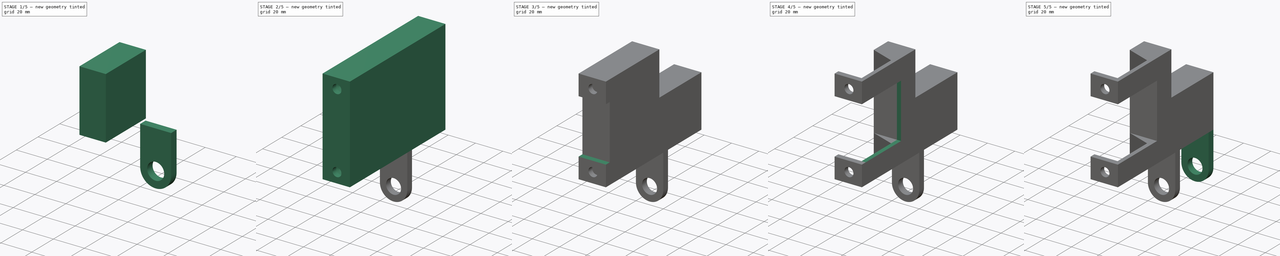
[diagram: build sequence overview — one tinted view per stage of 5, left to right]
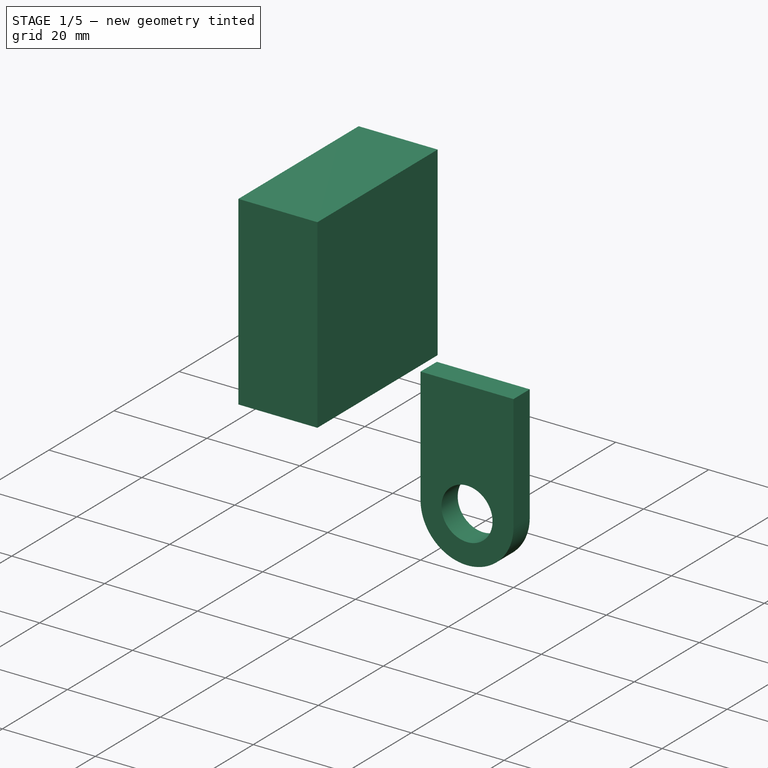
[diagram: stage 1 of 5 — iso view after this stage's code; geometry added in this stage tinted green]
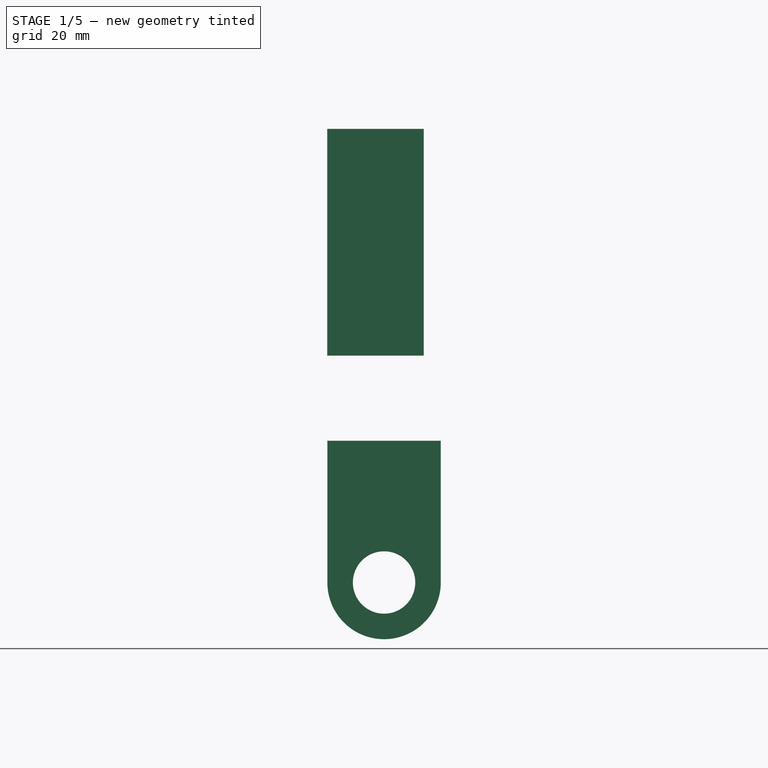
[diagram: stage 1 of 5 — front view after this stage's code; geometry added in this stage tinted green]
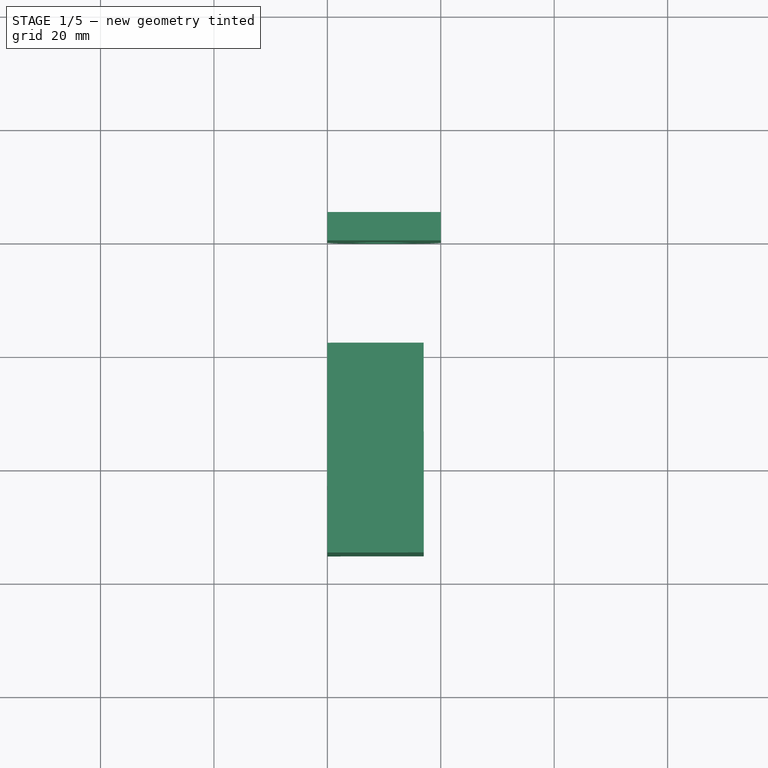
[diagram: stage 1 of 5 — top view after this stage's code; geometry added in this stage tinted green]
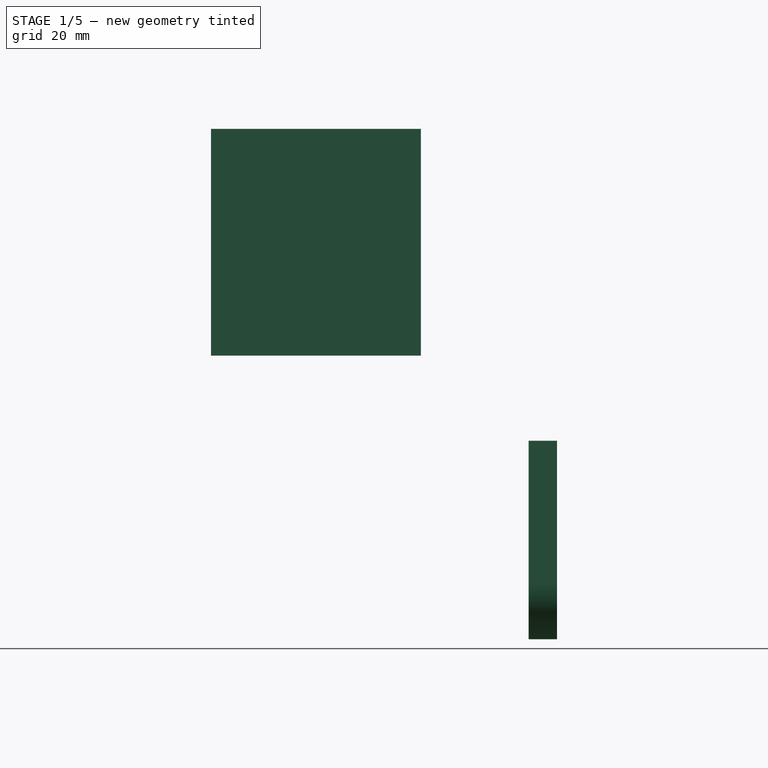
[diagram: stage 1 of 5 — right view after this stage's code; geometry added in this stage tinted green]
FCSTD DOCUMENT  (FreeCAD 0.17R13541 (Git))
Label: LimitSwitchHolder_x-minus_2
License: All rights reserved
LicenseURL: http://en.wikipedia.org/wiki/All_rights_reserved
objects: Sketcher::SketchObject×15, PartDesign::Pad×11, PartDesign::Body×11, PartDesign::ShapeBinder×10, PartDesign::Boolean×10, PartDesign::Hole×3
note: 74 computed .brp shape members not serialized (recipe doc carries the construction recipe); baked Part::Feature solids carry a one-line shape summary decoded from their .brp

FEATURE [PartDesign::ShapeBinder] CopyBoolean003
FEATURE [Sketcher::SketchObject] Sketch007
  MapMode = 5
  Placement = pos=(17.0025,0.010515,0) rot=(0.577588,-0.577231,-0.577231;2.09404rad)
  Support = -> [CopyBoolean003]
  sketch-geometry (4):
    g0: LineSegment StartX=-4 StartY=55 StartZ=0 EndX=-41 EndY=55 EndZ=0
    g1: LineSegment StartX=-41 StartY=55 StartZ=0 EndX=-41 EndY=15 EndZ=0
    g2: LineSegment StartX=-41 StartY=15 StartZ=0 EndX=-4 EndY=15 EndZ=0
    g3: LineSegment StartX=-4 StartY=15 StartZ=0 EndX=-4 EndY=55 EndZ=0
  constraints (12):
    c: Coincident(g0,g1)
    c: Coincident(g1,g2)
    c: Coincident(g2,g3)
    c: Coincident(g3,g0)
    c: Horizontal(g0)
    c: Horizontal(g2)
    c: Vertical(g1)
    c: Vertical(g3)
    c: DistanceY(g-1,g2) = 15
    c: DistanceX(g2,g-1) = 4
    c: DistanceY(g3,g3) = 40
    c: DistanceX(g2,g2) = 37
FEATURE [PartDesign::Pad] Pad005
  Length = 17
  Length2 = 100
  Profile = -> Sketch007
  Type = 0
FEATURE [PartDesign::ShapeBinder] CopyBoolean005
FEATURE [Sketcher::SketchObject] Sketch009
  MapMode = 5
  Placement = pos=(0,0,0) rot=(1,0,0;3.14159rad)
  Support = -> [CopyBoolean005]
  sketch-geometry (4):
    g0: LineSegment StartX=0 StartY=-60 StartZ=0 EndX=20 EndY=-60 EndZ=0
    g1: LineSegment StartX=20 StartY=-60 StartZ=0 EndX=20 EndY=-65 EndZ=0
    g2: LineSegment StartX=20 StartY=-65 StartZ=0 EndX=0 EndY=-65 EndZ=0
    g3: LineSegment StartX=0 StartY=-65 StartZ=0 EndX=0 EndY=-60 EndZ=0
  constraints (12):
    c: Coincident(g0,g1)
    c: Coincident(g1,g2)
    c: Coincident(g2,g3)
    c: Coincident(g3,g0)
    c: Horizontal(g0)
    c: Horizontal(g2)
    c: Vertical(g1)
    c: Vertical(g3)
    c: PointOnObject(g0,g-2)
    c: DistanceY(g0,g-1) = 60
    c: DistanceY(g1,g1) = 5
    c: DistanceX(g2,g2) = 20
FEATURE [PartDesign::Pad] Pad007
  Length = 25
  Length2 = 100
  Profile = -> Sketch009
  Type = 0
FEATURE [PartDesign::Body] Body007
  Group = -> [CopyBoolean005,Sketch009,Pad007]
  Origin = -> Origin007
  Tip = -> Pad007
FEATURE [PartDesign::ShapeBinder] CopyPad007
FEATURE [Sketcher::SketchObject] Sketch010
  MapMode = 5
  Placement = pos=(0,65,0) rot=(0,0.707107,0.707107;3.14159rad)
  Support = -> [CopyPad007]
  sketch-geometry (1):
    g0: Circle CenterX=-10.6825 CenterY=-25.077 CenterZ=0 NormalX=0 NormalY=0 NormalZ=1 AngleXU=0 Radius=11.75
FEATURE [PartDesign::Pad] Pad008
  Length = 5
  Length2 = 100
  Profile = -> Sketch010
  Reversed = true
  Type = 0
FEATURE [PartDesign::Boolean] Boolean006
  BaseFeature = -> Pad008
  Group = -> [Body007]
  Type = 0
FEATURE [Sketcher::SketchObject] Sketch011
  MapMode = 5
  Placement = pos=(0,60,0) rot=(1,0,0;1.5708rad)
  Support = -> [Boolean006]
  sketch-geometry (1):
    g0: Circle CenterX=10 CenterY=-25 CenterZ=0 NormalX=0 NormalY=0 NormalZ=1 AngleXU=0 Radius=4.92111
  constraints (2):
    c: DistanceY(g0,g-1) = 25
    c: DistanceX(g-1,g0) = 10
FEATURE [PartDesign::Hole] Hole001
  BaseFeature = -> Boolean006
  Depth = 25
  DepthType = 1
  Diameter = 11
  DrillPoint = 1
  DrillPointAngle = 118
  HoleCutCountersinkAngle = 90
  HoleCutDepth = 0
  HoleCutDiameter = 10
  HoleCutType = 0
  ModelActualThread = false
  Profile = -> Sketch011
  Tapered = false
  TaperedAngle = 90
  ThreadAngle = 0
  ThreadClass = 0
  ThreadCutOffInner = 0
  ThreadCutOffOuter = 0
  ThreadDirection = 0
  ThreadFit = 0
  ThreadPitch = 0
  ThreadSize = 9
  ThreadType = 1
  Threaded = false
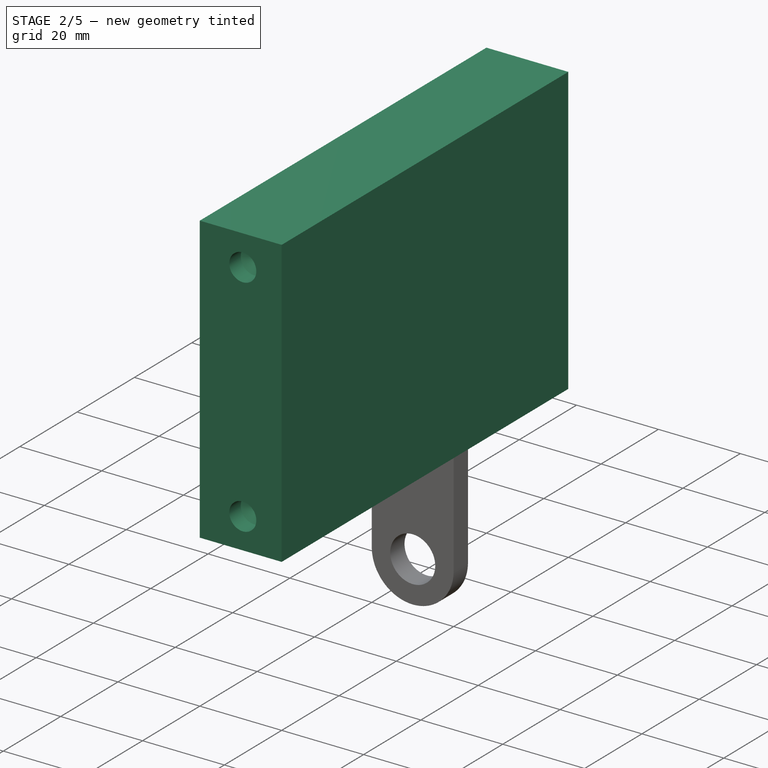
[diagram: stage 2 of 5 — iso view after this stage's code; geometry added in this stage tinted green]
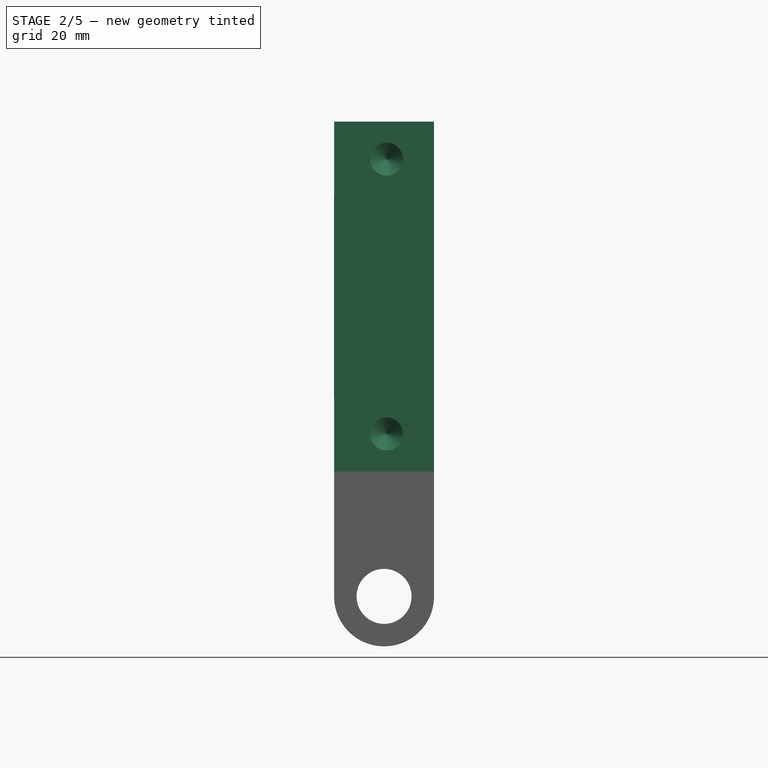
[diagram: stage 2 of 5 — front view after this stage's code; geometry added in this stage tinted green]
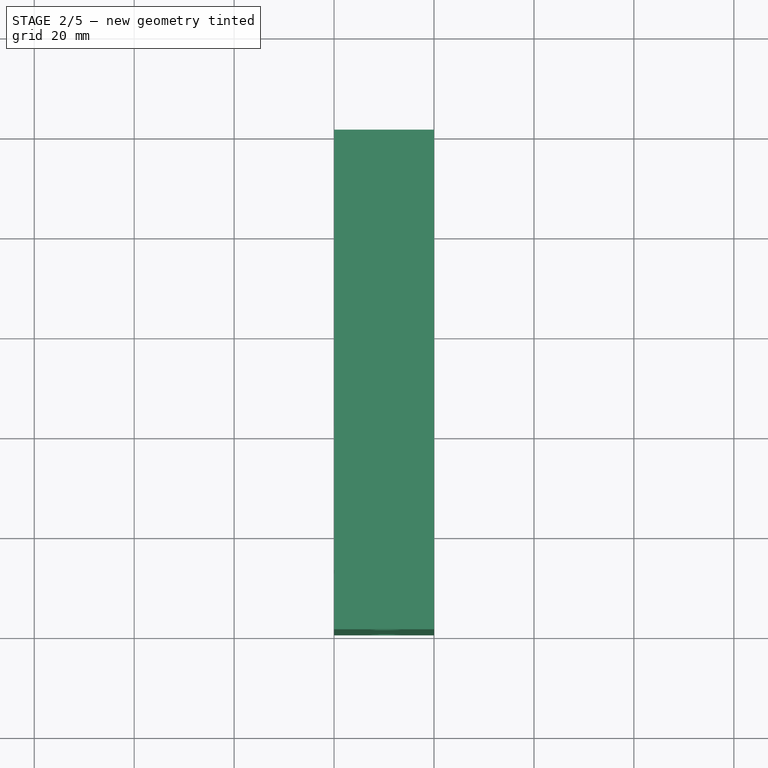
[diagram: stage 2 of 5 — top view after this stage's code; geometry added in this stage tinted green]
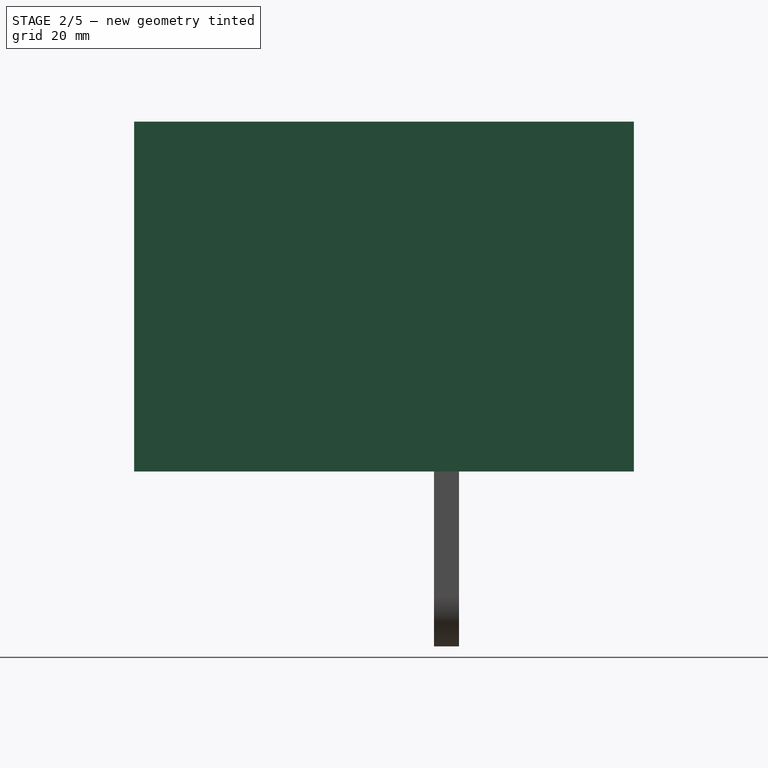
[diagram: stage 2 of 5 — right view after this stage's code; geometry added in this stage tinted green]
FEATURE [Sketcher::SketchObject] Sketch
  MapMode = 5
  Placement = pos=(0,0,0) rot=(0.57735,0.57735,0.57735;2.0944rad)
  Support = -> [YZ_Plane]
  sketch-geometry (4):
    g0: LineSegment StartX=0 StartY=70 StartZ=0 EndX=100 EndY=70 EndZ=0
    g1: LineSegment StartX=100 StartY=70 StartZ=0 EndX=100 EndY=0 EndZ=0
    g2: LineSegment StartX=100 StartY=0 StartZ=0 EndX=0 EndY=0 EndZ=0
    g3: LineSegment StartX=0 StartY=0 StartZ=0 EndX=0 EndY=70 EndZ=0
  constraints (12):
    c: Coincident(g0,g1)
    c: Coincident(g1,g2)
    c: Coincident(g2,g3)
    c: Coincident(g3,g0)
    c: Horizontal(g0)
    c: Horizontal(g2)
    c: Vertical(g1)
    c: Vertical(g3)
    c: PointOnObject(g1,g-1)
    c: PointOnObject(g2,g-2)
    c: DistanceY(g3,g3) = 70
    c: DistanceX(g0,g0) = 100
FEATURE [PartDesign::Pad] Pad
  Length = 20
  Length2 = 100
  Placement = pos=(0,0,0) rot=(0.57735,0.57735,0.57735;2.0944rad)
  Profile = -> Sketch
  Type = 0
FEATURE [Sketcher::SketchObject] Sketch001
  MapMode = 5
  Placement = pos=(0,0,0) rot=(-0.57735,-0.57735,0.57735;4.18879rad)
  Support = -> [Pad]
  sketch-geometry (2):
    g0: Circle CenterX=-62.5 CenterY=10.5 CenterZ=0 NormalX=0 NormalY=0 NormalZ=1 AngleXU=0 Radius=3.20648
    g1: Circle CenterX=-7.5 CenterY=10.5 CenterZ=0 NormalX=0 NormalY=0 NormalZ=1 AngleXU=0 Radius=3.49158
  constraints (4):
    c: DistanceY(g-1,g1) = 10.5
    c: DistanceX(g1,g-1) = 7.5
    c: DistanceX(g0,g1) = 55
    c: Horizontal(g0,g1)
FEATURE [PartDesign::Hole] Hole
  BaseFeature = -> Pad
  Depth = 6
  DepthType = 0
  Diameter = 6.6
  DrillPoint = 1
  DrillPointAngle = 118
  HoleCutCountersinkAngle = 90
  HoleCutDepth = 0
  HoleCutDiameter = 6
  HoleCutType = 0
  ModelActualThread = false
  Placement = pos=(0,0,0) rot=(0.57735,0.57735,0.57735;2.0944rad)
  Profile = -> Sketch001
  Tapered = false
  TaperedAngle = 90
  ThreadAngle = 0
  ThreadClass = 0
  ThreadCutOffInner = 0
  ThreadCutOffOuter = 0
  ThreadDirection = 0
  ThreadFit = 0
  ThreadPitch = 0
  ThreadSize = 7
  ThreadType = 1
  Threaded = false
FEATURE [PartDesign::Body] Body001
  Group = -> [CopyHole,Sketch003,Pad001]
  Origin = -> Origin001
  Tip = -> Pad001
FEATURE [PartDesign::ShapeBinder] CopyHole001
FEATURE [Sketcher::SketchObject] Sketch004
  MapMode = 5
  Placement = pos=(0,0,0) rot=(-0.57735,0.57735,0.57735;4.18879rad)
  Support = -> [CopyHole001]
  sketch-geometry (4):
    g0: LineSegment StartX=-87 StartY=32 StartZ=0 EndX=-44 EndY=32 EndZ=0
    g1: LineSegment StartX=-44 StartY=32 StartZ=0 EndX=-44 EndY=3 EndZ=0
    g2: LineSegment StartX=-44 StartY=3 StartZ=0 EndX=-87 EndY=3 EndZ=0
    g3: LineSegment StartX=-87 StartY=3 StartZ=0 EndX=-87 EndY=32 EndZ=0
  constraints (12):
    c: Coincident(g0,g1)
    c: Coincident(g1,g2)
    c: Coincident(g2,g3)
    c: Coincident(g3,g0)
    c: Horizontal(g0)
    c: Horizontal(g2)
    c: Vertical(g1)
    c: Vertical(g3)
    c: DistanceY(g-1,g1) = 3
    c: DistanceX(g1,g-1) = 44
    c: DistanceY(g1,g1) = 29
    c: DistanceX(g0,g0) = 43
FEATURE [PartDesign::Pad] Pad002
  Length = 2
  Length2 = 100
  Profile = -> Sketch004
  Reversed = true
  Type = 0
FEATURE [PartDesign::Body] Body002
  Group = -> [CopyHole001,Sketch004,Pad002]
  Origin = -> Origin002
  Tip = -> Pad002
FEATURE [PartDesign::ShapeBinder] CopyHole002
FEATURE [Sketcher::SketchObject] Sketch005
  MapMode = 5
  Placement = pos=(0,0,0) rot=(-0.57735,0.57735,0.57735;4.18879rad)
  Support = -> [CopyHole002]
  sketch-geometry (4):
    g0: LineSegment StartX=-100 StartY=70 StartZ=0 EndX=-56 EndY=70 EndZ=0
    g1: LineSegment StartX=-56 StartY=70 StartZ=0 EndX=-56 EndY=38 EndZ=0
    g2: LineSegment StartX=-56 StartY=38 StartZ=0 EndX=-100 EndY=38 EndZ=0
    g3: LineSegment StartX=-100 StartY=38 StartZ=0 EndX=-100 EndY=70 EndZ=0
  constraints (12):
    c: Coincident(g0,g1)
    c: Coincident(g1,g2)
    c: Coincident(g2,g3)
    c: Coincident(g3,g0)
    c: Horizontal(g0)
    c: Horizontal(g2)
    c: Vertical(g1)
    c: Vertical(g3)
    c: DistanceY(g-1,g1) = 38
    c: DistanceX(g1,g-1) = 56
    c: DistanceY(g1,g1) = 32
    c: DistanceX(g0,g0) = 44
FEATURE [PartDesign::Pad] Pad003
  Length = 20
  Length2 = 100
  Profile = -> Sketch005
  Reversed = true
  Type = 0
FEATURE [PartDesign::Body] Body004
  Group = -> [CopyHole003,Sketch006,Pad004]
  Origin = -> Origin004
  Tip = -> Pad004
FEATURE [PartDesign::Boolean] Boolean
  BaseFeature = -> Hole
  Group = -> [Body002]
  Type = 1
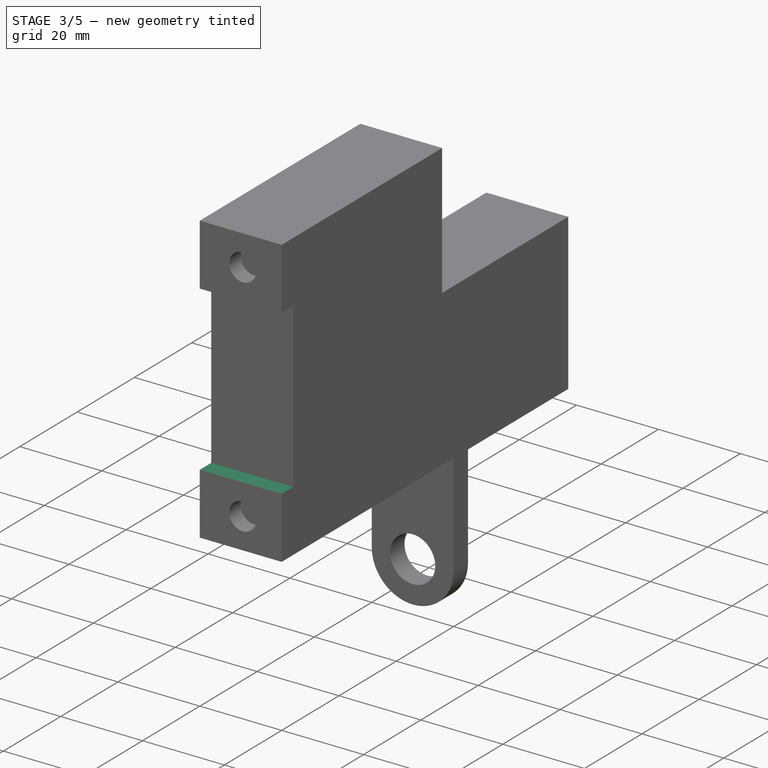
[diagram: stage 3 of 5 — iso view after this stage's code; geometry added in this stage tinted green]
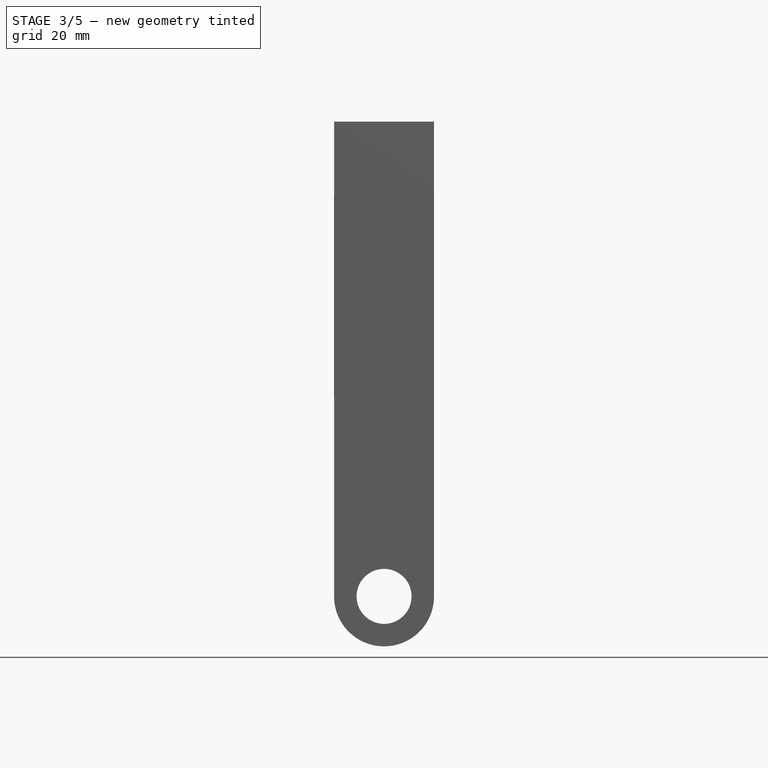
[diagram: stage 3 of 5 — front view after this stage's code; geometry added in this stage tinted green]
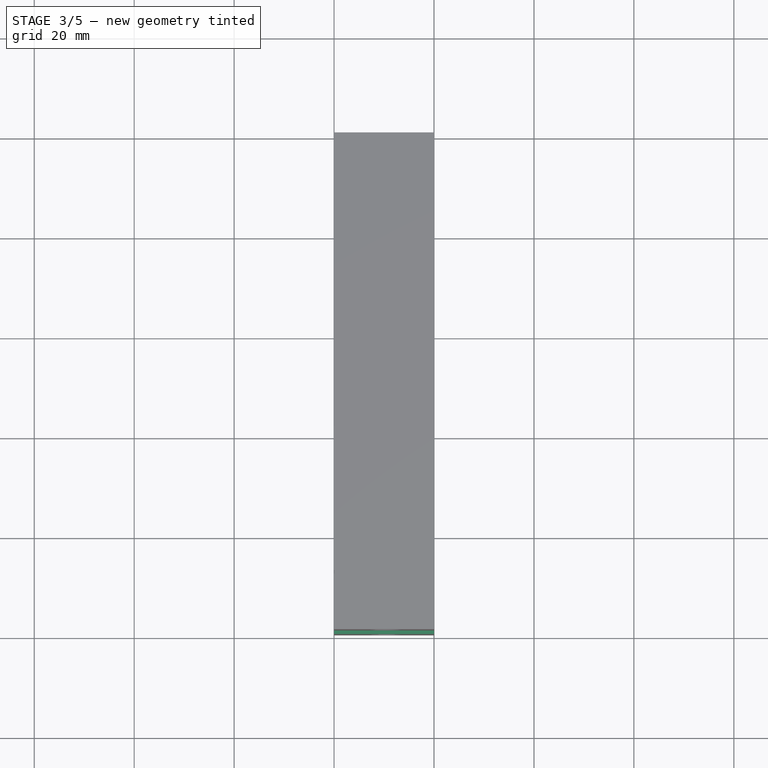
[diagram: stage 3 of 5 — top view after this stage's code; geometry added in this stage tinted green]
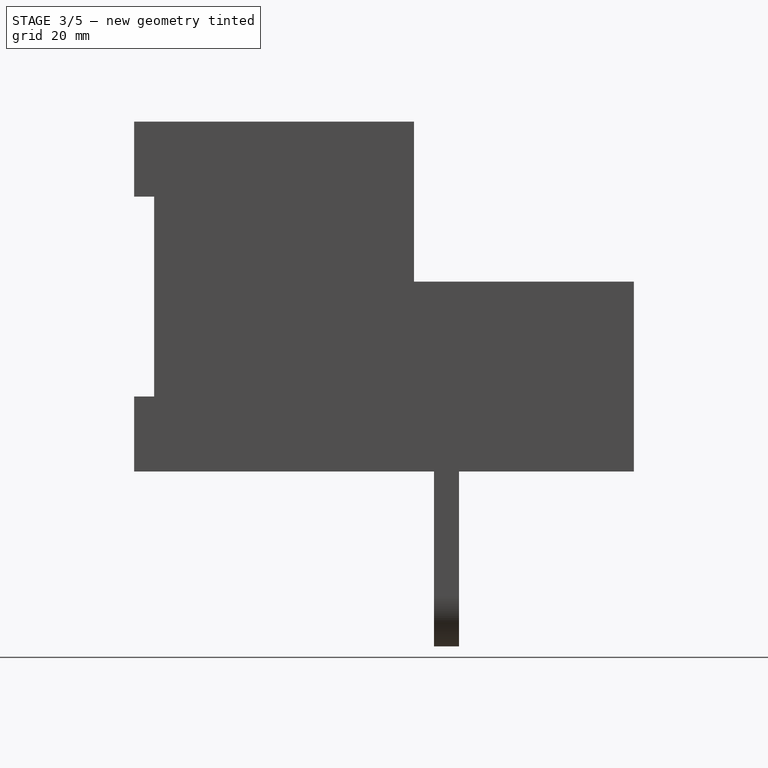
[diagram: stage 3 of 5 — right view after this stage's code; geometry added in this stage tinted green]
FEATURE [Sketcher::SketchObject] Sketch002
  MapMode = 5
  Placement = pos=(0,0,0) rot=(0.57735,0.57735,-0.57735;4.18879rad)
  Support = -> [Hole]
FEATURE [PartDesign::ShapeBinder] CopyHole
  Placement = pos=(0,0,0) rot=(0.57735,0.57735,0.57735;2.0944rad)
FEATURE [Sketcher::SketchObject] Sketch003
  MapMode = 5
  Placement = pos=(0,0,70) rot=(0,0,-1;1.5708rad)
  Support = -> [CopyHole]
  sketch-geometry (4):
    g0: LineSegment StartX=-34.8809 StartY=16.9809 StartZ=0 EndX=-4 EndY=17 EndZ=0
    g1: LineSegment StartX=-4 StartY=17 StartZ=0 EndX=-4 EndY=0 EndZ=0
    g2: LineSegment StartX=-4 StartY=0 StartZ=0 EndX=-41 EndY=0 EndZ=0
    g3: LineSegment StartX=-41 StartY=0 StartZ=0 EndX=-34.8809 EndY=16.9809 EndZ=0
  constraints (10):
    c: Coincident(g0,g1)
    c: Coincident(g1,g2)
    c: Coincident(g2,g3)
    c: Coincident(g3,g0)
    c: Horizontal(g2)
    c: Vertical(g1)
    c: DistanceY(g-1,g1) = 0
    c: DistanceX(g1,g-1) = 4
    c: DistanceY(g1,g1) = 17
    c: DistanceX(g2,g2) = 37
FEATURE [PartDesign::Pad] Pad001
  Length = 70
  Length2 = 100
  Placement = pos=(0,0,0) rot=(0.57735,0.57735,0.57735;2.0944rad)
  Profile = -> Sketch003
  Reversed = true
  Type = 0
FEATURE [PartDesign::Body] Body003
  Group = -> [CopyHole002,Sketch005,Pad003]
  Origin = -> Origin003
  Tip = -> Pad003
FEATURE [PartDesign::ShapeBinder] CopyHole003
FEATURE [Sketcher::SketchObject] Sketch006
  MapMode = 5
  Placement = pos=(0,0,0) rot=(-0.57735,0.57735,0.57735;4.18879rad)
  Support = -> [CopyHole003]
  sketch-geometry (4):
    g0: LineSegment StartX=-4 StartY=55 StartZ=0 EndX=0 EndY=55 EndZ=0
    g1: LineSegment StartX=0 StartY=55 StartZ=0 EndX=0 EndY=15 EndZ=0
    g2: LineSegment StartX=0 StartY=15 StartZ=0 EndX=-4 EndY=15 EndZ=0
    g3: LineSegment StartX=-4 StartY=15 StartZ=0 EndX=-4 EndY=55 EndZ=0
  constraints (12):
    c: Coincident(g0,g1)
    c: Coincident(g1,g2)
    c: Coincident(g2,g3)
    c: Coincident(g3,g0)
    c: Horizontal(g0)
    c: Horizontal(g2)
    c: Vertical(g1)
    c: Vertical(g3)
    c: PointOnObject(g1,g-2)
    c: DistanceY(g-1,g1) = 15
    c: DistanceX(g2,g2) = 4
    c: DistanceY(g3,g3) = 40
FEATURE [PartDesign::Pad] Pad004
  Length = 20
  Length2 = 100
  Profile = -> Sketch006
  Reversed = true
  Type = 0
FEATURE [PartDesign::Boolean] Boolean001
  BaseFeature = -> Boolean
  Group = -> [Body003]
  Type = 1
FEATURE [PartDesign::Boolean] Boolean002
  BaseFeature = -> Boolean001
  Group = -> [Body004]
  Type = 1
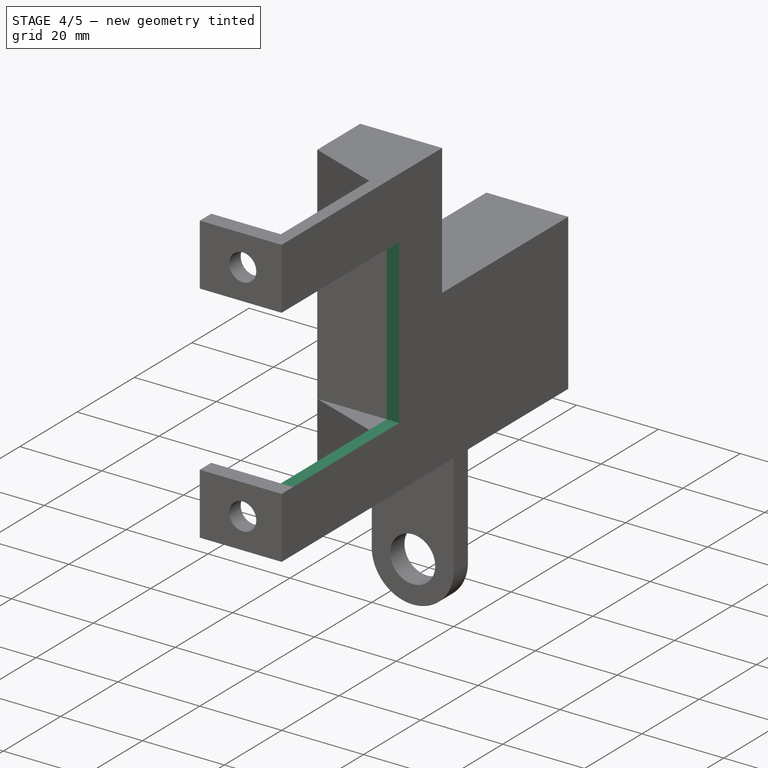
[diagram: stage 4 of 5 — iso view after this stage's code; geometry added in this stage tinted green]
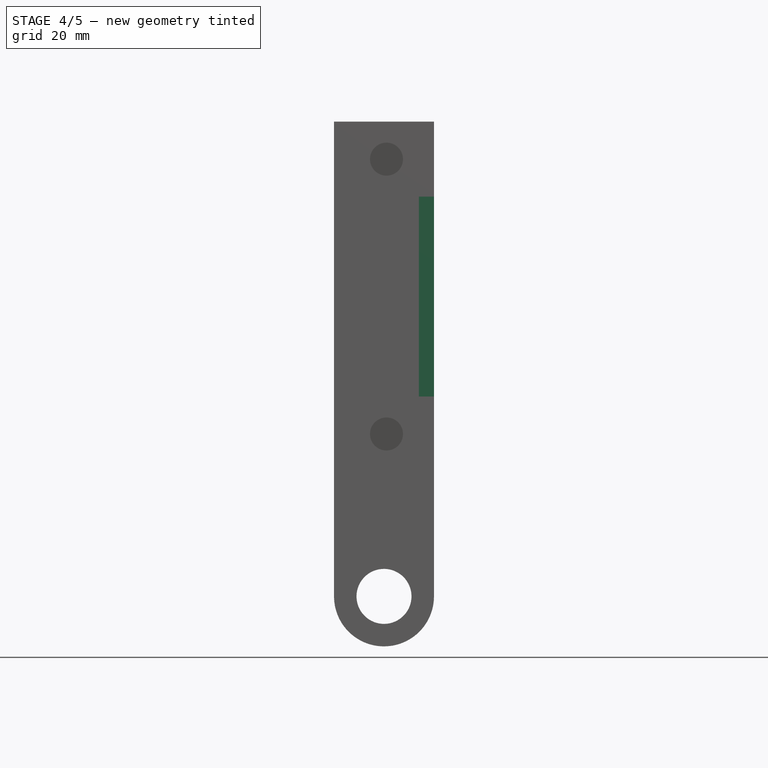
[diagram: stage 4 of 5 — front view after this stage's code; geometry added in this stage tinted green]
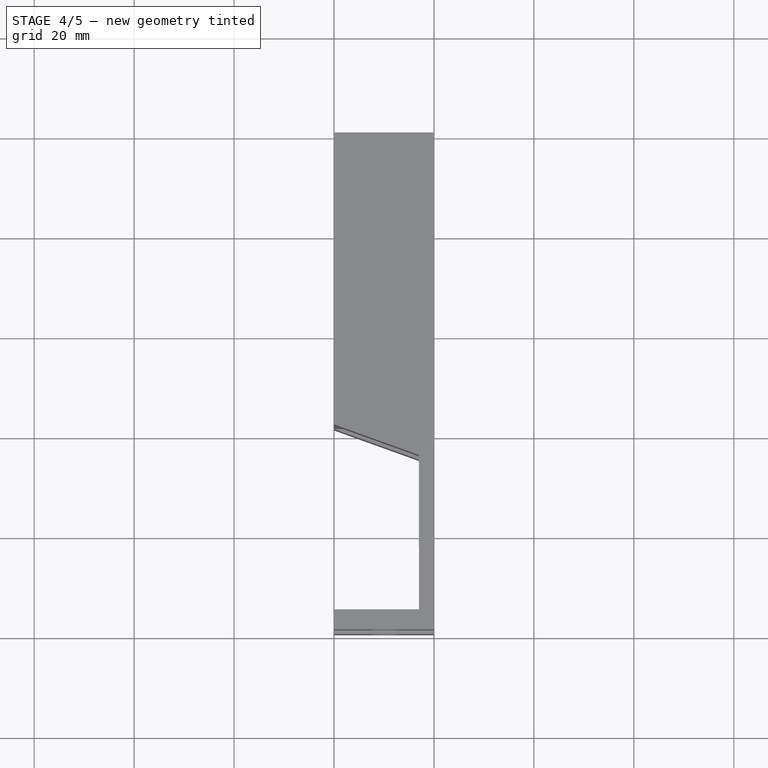
[diagram: stage 4 of 5 — top view after this stage's code; geometry added in this stage tinted green]
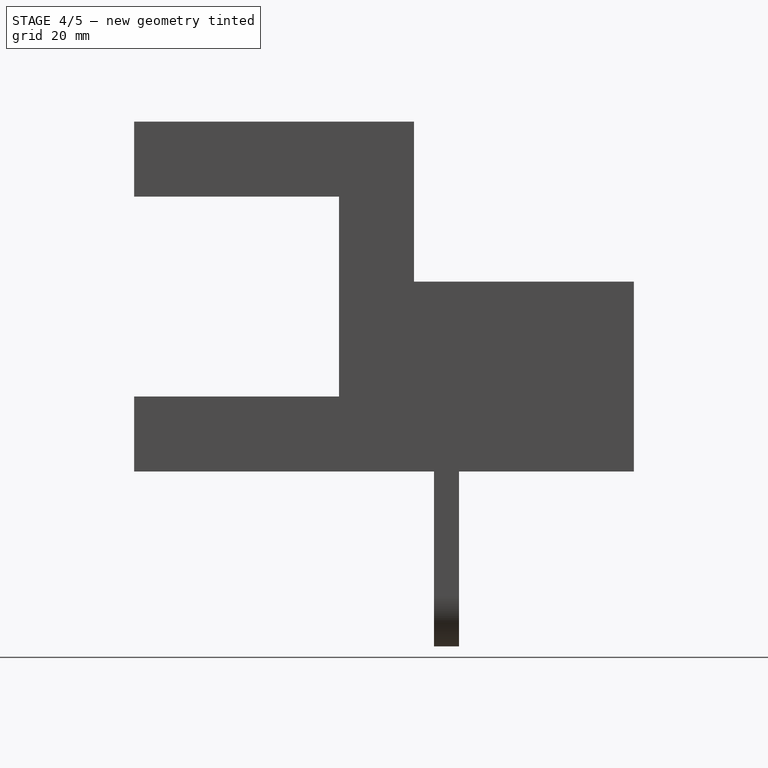
[diagram: stage 4 of 5 — right view after this stage's code; geometry added in this stage tinted green]
FEATURE [PartDesign::Boolean] Boolean003
  BaseFeature = -> Boolean002
  Group = -> [Body001]
  Type = 1
FEATURE [PartDesign::Body] Body005
  Group = -> [CopyBoolean003,Sketch007,Pad005]
  Origin = -> Origin005
  Tip = -> Pad005
FEATURE [PartDesign::ShapeBinder] CopyBoolean004
FEATURE [Sketcher::SketchObject] Sketch008
  MapMode = 5
  Placement = pos=(17.0025,0.010515,0) rot=(0.577588,-0.577231,-0.577231;2.09404rad)
  Support = -> [CopyBoolean004]
  sketch-geometry (4):
    g0: LineSegment StartX=-3 StartY=55 StartZ=0 EndX=-41 EndY=55 EndZ=0
    g1: LineSegment StartX=-41 StartY=55 StartZ=0 EndX=-41 EndY=15 EndZ=0
    g2: LineSegment StartX=-41 StartY=15 StartZ=0 EndX=-3 EndY=15 EndZ=0
    g3: LineSegment StartX=-3 StartY=15 StartZ=0 EndX=-3 EndY=55 EndZ=0
  constraints (12):
    c: Coincident(g0,g1)
    c: Coincident(g1,g2)
    c: Coincident(g2,g3)
    c: Coincident(g3,g0)
    c: Horizontal(g0)
    c: Horizontal(g2)
    c: Vertical(g1)
    c: Vertical(g3)
    c: DistanceY(g-1,g2) = 15
    c: DistanceX(g2,g-1) = 3
    c: DistanceY(g3,g3) = 40
    c: DistanceX(g2,g2) = 38
FEATURE [PartDesign::Pad] Pad006
  Length = 17
  Length2 = 100
  Profile = -> Sketch008
  Type = 0
FEATURE [PartDesign::Body] Body006
  Group = -> [CopyBoolean004,Sketch008,Pad006]
  Origin = -> Origin006
  Placement = pos=(4,0,0) rot=(0,0,1;0rad)
  Tip = -> Pad006
FEATURE [PartDesign::Boolean] Boolean004
  BaseFeature = -> Boolean003
  Group = -> [Body005]
  Type = 1
FEATURE [PartDesign::Boolean] Boolean005
  BaseFeature = -> Boolean004
  Group = -> [Body006]
  Type = 1
FEATURE [PartDesign::Body] Body010
  Group = -> [CopyPad008,Sketch013,Pad010,Boolean007,Sketch014,Hole002]
  Origin = -> Origin010
  Placement = pos=(0,35,0) rot=(0,0,1;0rad)
  Tip = -> Hole002
FEATURE [PartDesign::Boolean] Boolean008
  BaseFeature = -> Boolean005
  Group = -> [Body008]
  Type = 0
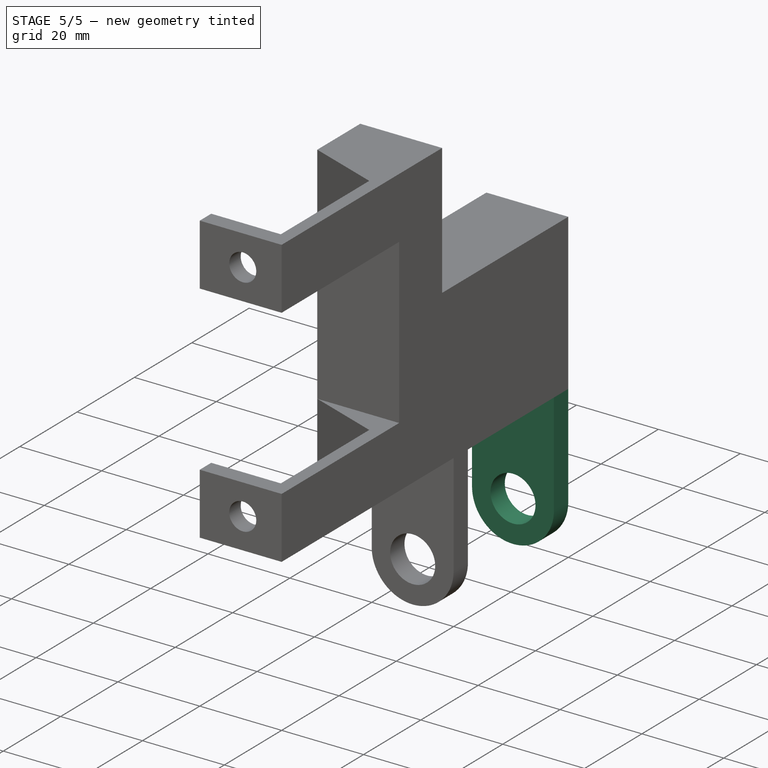
[diagram: stage 5 of 5 — iso view after this stage's code; geometry added in this stage tinted green]
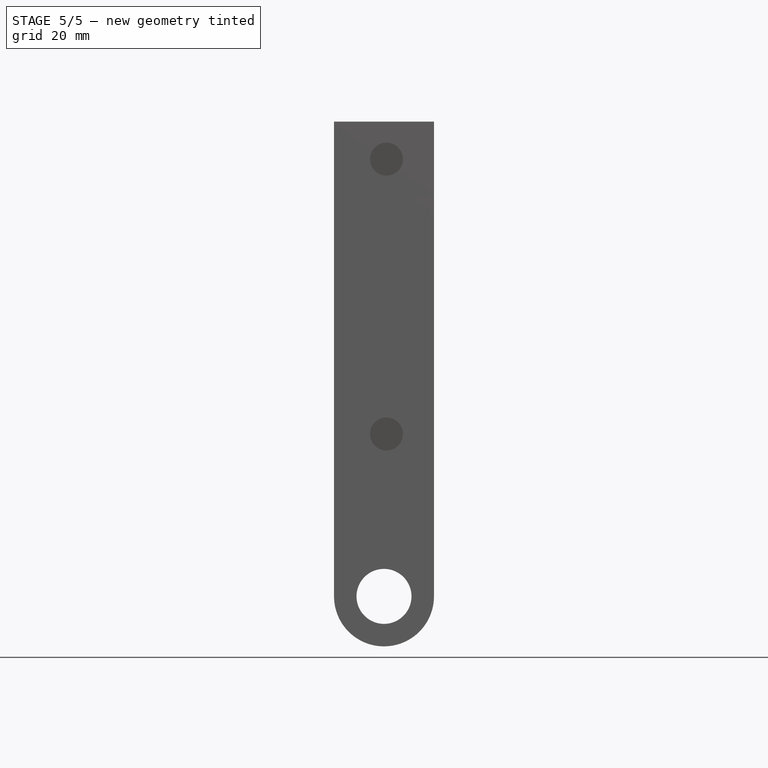
[diagram: stage 5 of 5 — front view after this stage's code; geometry added in this stage tinted green]
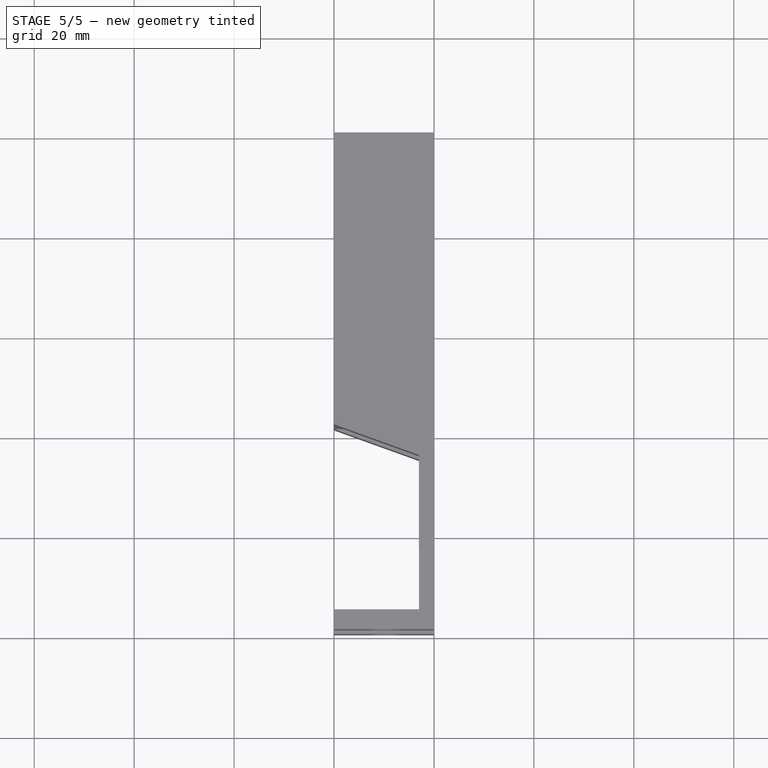
[diagram: stage 5 of 5 — top view after this stage's code; geometry added in this stage tinted green]
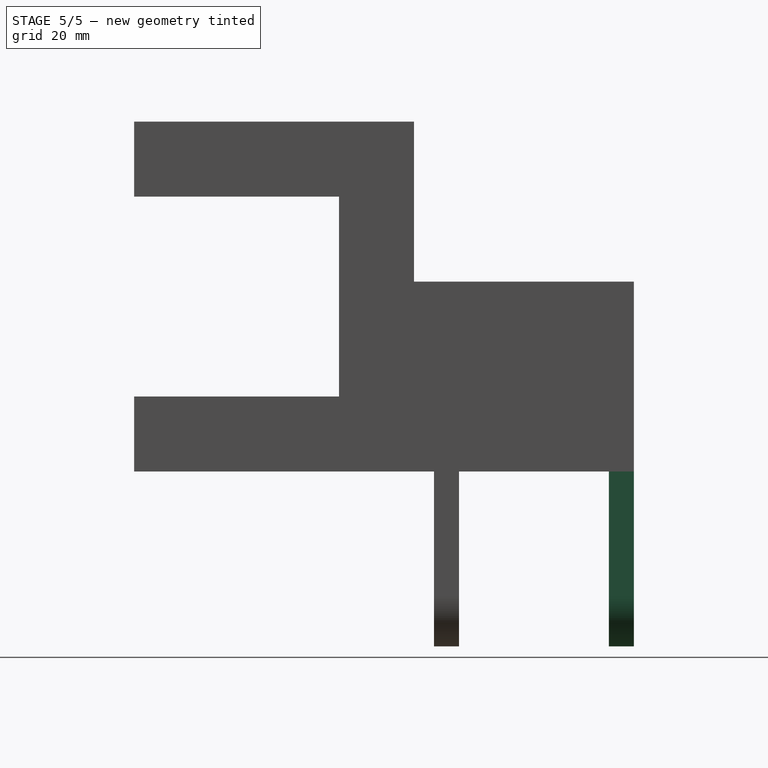
[diagram: stage 5 of 5 — right view after this stage's code; geometry added in this stage tinted green]
FEATURE [PartDesign::Body] Body008
  Group = -> [CopyPad007,Sketch010,Pad008,Boolean006,Sketch011,Hole001]
  Origin = -> Origin008
  Tip = -> Hole001
FEATURE [PartDesign::ShapeBinder] CopyBoolean006
FEATURE [Sketcher::SketchObject] Sketch012
  MapMode = 5
  Placement = pos=(0,0,0) rot=(1,0,0;3.14159rad)
  Support = -> [CopyBoolean006]
  sketch-geometry (4):
    g0: LineSegment StartX=0 StartY=-60 StartZ=0 EndX=20 EndY=-60 EndZ=0
    g1: LineSegment StartX=20 StartY=-60 StartZ=0 EndX=20 EndY=-65 EndZ=0
    g2: LineSegment StartX=20 StartY=-65 StartZ=0 EndX=0 EndY=-65 EndZ=0
    g3: LineSegment StartX=0 StartY=-65 StartZ=0 EndX=0 EndY=-60 EndZ=0
  constraints (12):
    c: Coincident(g0,g1)
    c: Coincident(g1,g2)
    c: Coincident(g2,g3)
    c: Coincident(g3,g0)
    c: Horizontal(g0)
    c: Horizontal(g2)
    c: Vertical(g1)
    c: Vertical(g3)
    c: PointOnObject(g0,g-2)
    c: DistanceY(g0,g-1) = 60
    c: DistanceY(g1,g1) = 5
    c: DistanceX(g2,g2) = 20
FEATURE [PartDesign::Pad] Pad009
  Length = 25
  Length2 = 100
  Profile = -> Sketch012
  Type = 0
FEATURE [PartDesign::Body] Body009
  Group = -> [CopyBoolean006,Sketch012,Pad009]
  Origin = -> Origin009
  Tip = -> Pad009
FEATURE [PartDesign::ShapeBinder] CopyPad008
FEATURE [Sketcher::SketchObject] Sketch013
  MapMode = 5
  Placement = pos=(0,65,0) rot=(0,0.707107,0.707107;3.14159rad)
  Support = -> [CopyPad008]
  sketch-geometry (1):
    g0: Circle CenterX=-10.6825 CenterY=-25.077 CenterZ=0 NormalX=0 NormalY=0 NormalZ=1 AngleXU=0 Radius=11.75
FEATURE [PartDesign::Pad] Pad010
  Length = 5
  Length2 = 100
  Profile = -> Sketch013
  Reversed = true
  Type = 0
FEATURE [PartDesign::Boolean] Boolean007
  BaseFeature = -> Pad010
  Group = -> [Body009]
  Type = 0
FEATURE [Sketcher::SketchObject] Sketch014
  MapMode = 5
  Placement = pos=(0,60,0) rot=(1,0,0;1.5708rad)
  Support = -> [Boolean007]
  sketch-geometry (1):
    g0: Circle CenterX=10 CenterY=-25 CenterZ=0 NormalX=0 NormalY=0 NormalZ=1 AngleXU=0 Radius=4.92111
  constraints (2):
    c: DistanceY(g0,g-1) = 25
    c: DistanceX(g-1,g0) = 10
FEATURE [PartDesign::Hole] Hole002
  BaseFeature = -> Boolean007
  Depth = 25
  DepthType = 1
  Diameter = 11
  DrillPoint = 1
  DrillPointAngle = 118
  HoleCutCountersinkAngle = 90
  HoleCutDepth = 0
  HoleCutDiameter = 10
  HoleCutType = 0
  ModelActualThread = false
  Profile = -> Sketch014
  Tapered = false
  TaperedAngle = 90
  ThreadAngle = 0
  ThreadClass = 0
  ThreadCutOffInner = 0
  ThreadCutOffOuter = 0
  ThreadDirection = 0
  ThreadFit = 0
  ThreadPitch = 0
  ThreadSize = 9
  ThreadType = 1
  Threaded = false
FEATURE [PartDesign::Boolean] Boolean009
  BaseFeature = -> Boolean008
  Group = -> [Body010]
  Type = 0
FEATURE [PartDesign::Body] Body
  Group = -> [Sketch,Pad,Sketch001,Hole,Sketch002,Boolean,Boolean001,Boolean002,Boolean003,Boolean004,Boolean005,Boolean008,Boolean009]
  Origin = -> Origin
  Tip = -> Boolean009
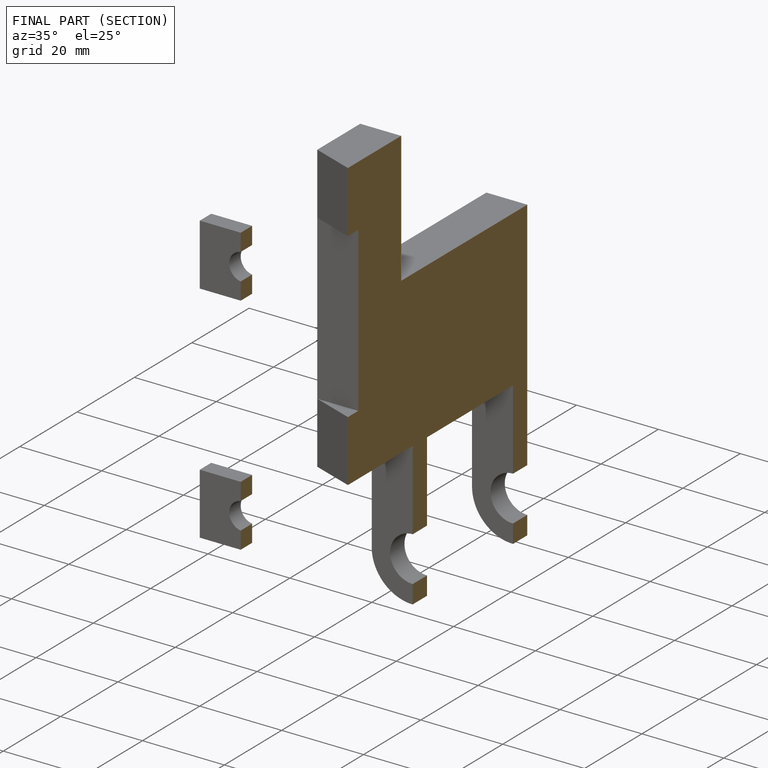
[diagram: finished part — half-section view (interior)]
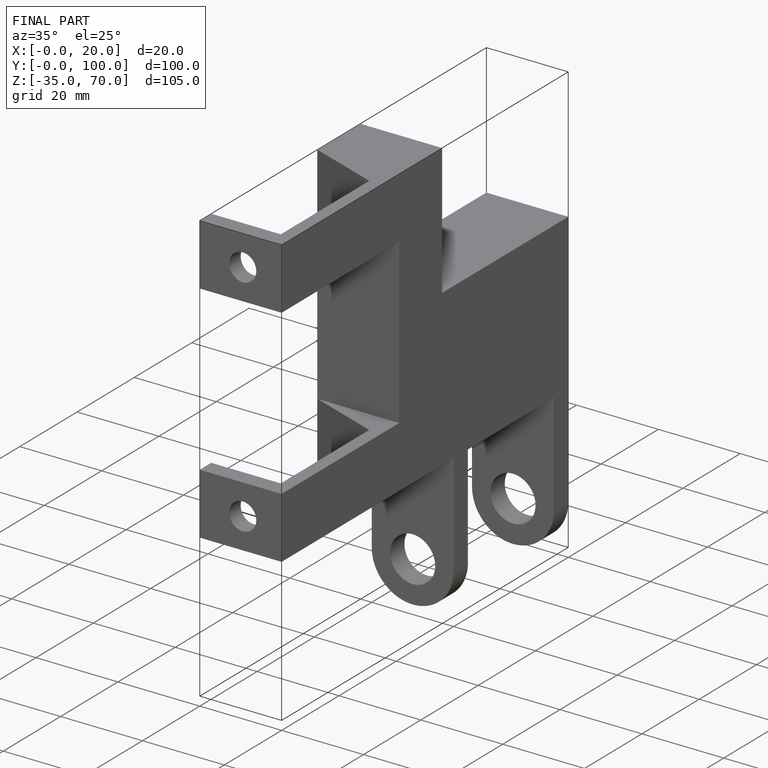
[diagram: finished part — iso view with bounding-box wireframe]
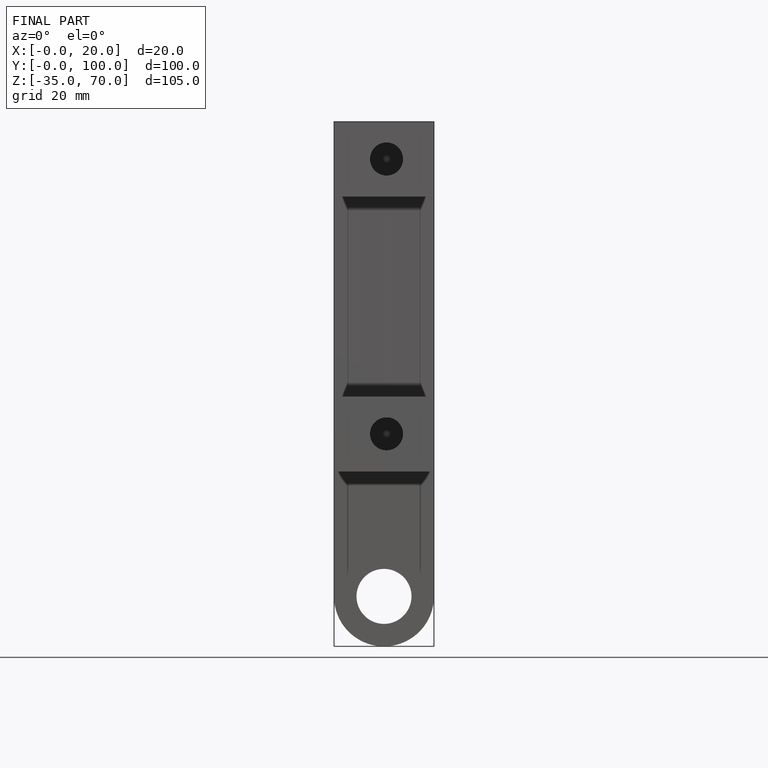
[diagram: finished part — front view with bounding-box wireframe]
